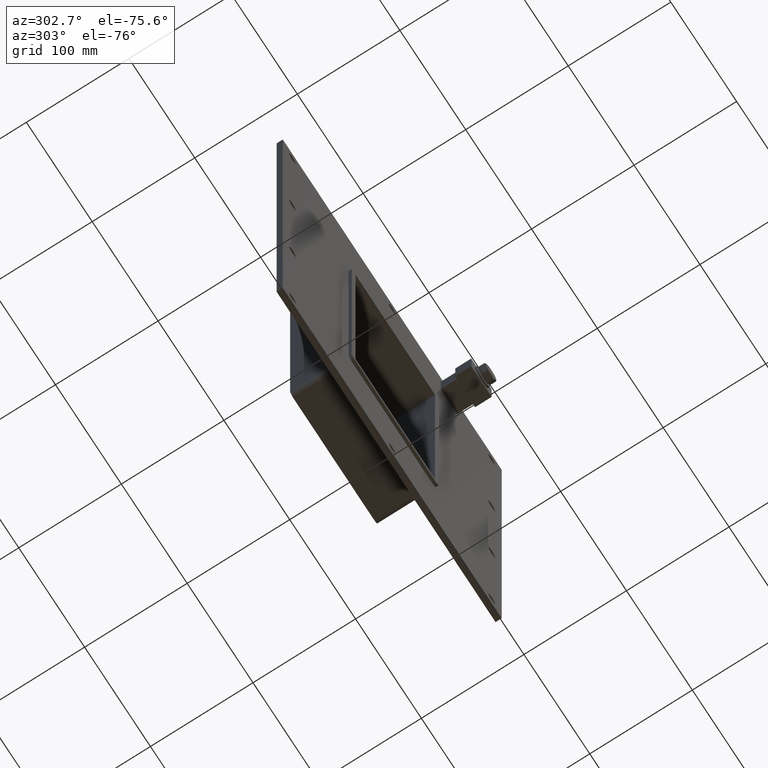
[diagram: clean part render]
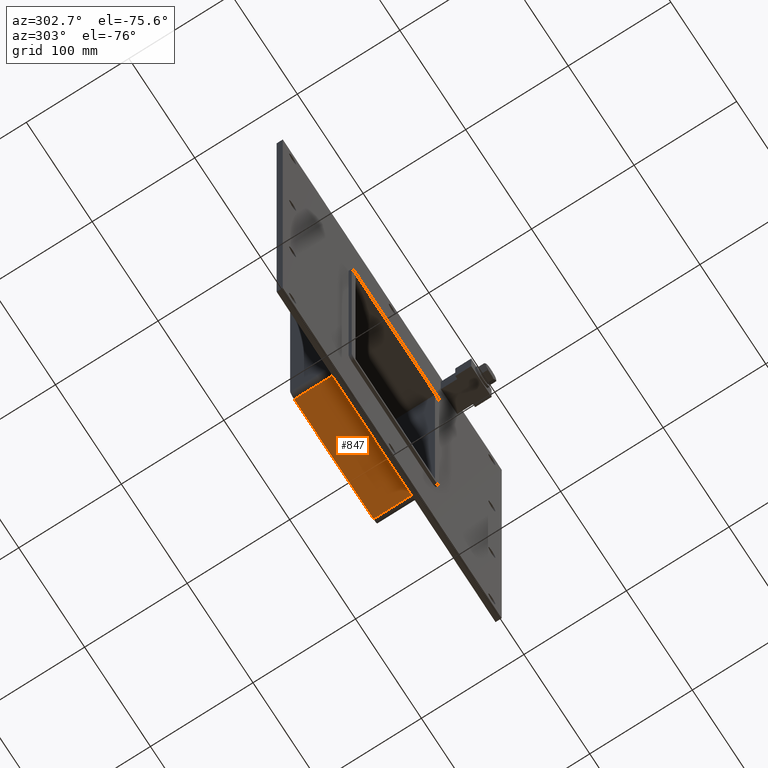
[diagram: same view with one face highlighted and labeled with its STEP entity id]
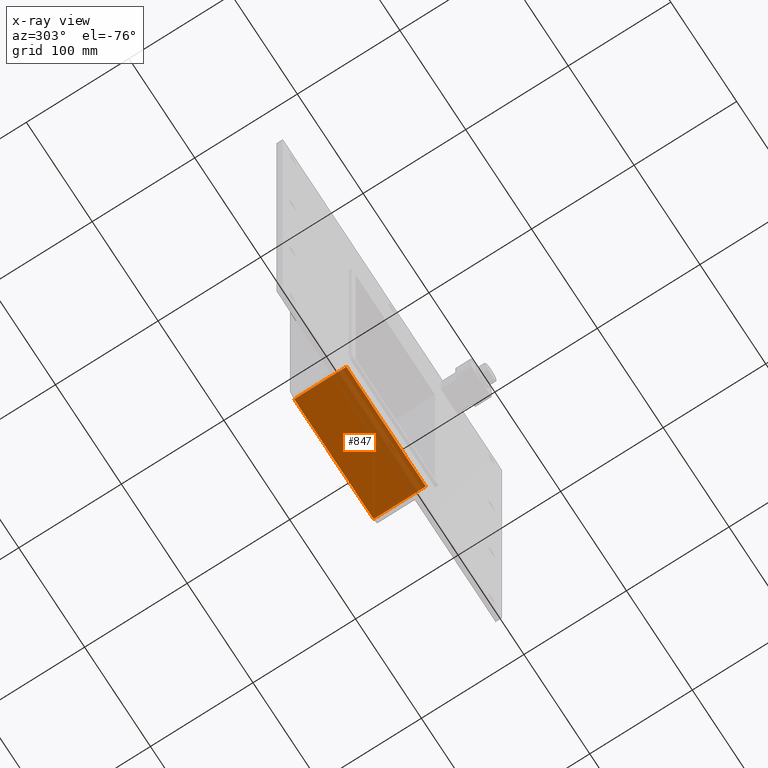
[diagram: x-ray of the same camera — body ghosted, the highlighted face saturated]
A machine part, auxiliary view. The second image highlights one B-rep face of the part: STEP entity #847.
The next image is the same camera in x-ray: the body ghosted, the highlighted face saturated — about 20% of this face is hidden behind the body in this view.
In plain terms, the highlighted planar face has unit normal (0, 0, -1).
Its self-contained STEP definition (entity closure, byte-faithful):
#436=CARTESIAN_POINT('',(-60.25,6.000000000000001,-145.0));
#437=VERTEX_POINT('',#436);
#445=CARTESIAN_POINT('',(60.25,6.000000000000001,-145.0));
#446=VERTEX_POINT('',#445);
#447=CARTESIAN_POINT('',(60.25,6.000000000000001,-145.0));
#448=DIRECTION('',(-1.0,0.0,0.0));
#449=VECTOR('',#448,120.5);
#450=LINE('',#447,#449);
#451=EDGE_CURVE('',#446,#437,#450,.T.);
#774=CARTESIAN_POINT('',(60.25,57.0,-145.0));
#775=VERTEX_POINT('',#774);
#776=CARTESIAN_POINT('',(60.25,6.000000000000001,-145.0));
#777=DIRECTION('',(0.0,1.0,0.0));
#778=VECTOR('',#777,51.0);
#779=LINE('',#776,#778);
#780=EDGE_CURVE('',#446,#775,#779,.T.);
#824=CARTESIAN_POINT('',(66.25,0.0,-145.0));
#825=DIRECTION('',(0.0,0.0,-1.0));
#826=DIRECTION('',(-1.0,0.0,0.0));
#827=AXIS2_PLACEMENT_3D('',#824,#825,#826);
#828=PLANE('',#827);
#829=ORIENTED_EDGE('',*,*,#451,.T.);
#830=CARTESIAN_POINT('',(-60.25,57.0,-145.0));
#831=VERTEX_POINT('',#830);
#832=CARTESIAN_POINT('',(-60.25,57.0,-145.0));
#833=DIRECTION('',(0.0,-1.0,0.0));
#834=VECTOR('',#833,51.0);
#835=LINE('',#832,#834);
#836=EDGE_CURVE('',#831,#437,#835,.T.);
#837=ORIENTED_EDGE('',*,*,#836,.F.);
#838=CARTESIAN_POINT('',(60.25,57.0,-145.0));
#839=DIRECTION('',(-1.0,0.0,0.0));
#840=VECTOR('',#839,120.5);
#841=LINE('',#838,#840);
#842=EDGE_CURVE('',#775,#831,#841,.T.);
#843=ORIENTED_EDGE('',*,*,#842,.F.);
#844=ORIENTED_EDGE('',*,*,#780,.F.);
#845=EDGE_LOOP('',(#829,#837,#843,#844));
#846=FACE_OUTER_BOUND('',#845,.T.);
#847=ADVANCED_FACE('',(#846),#828,.T.);